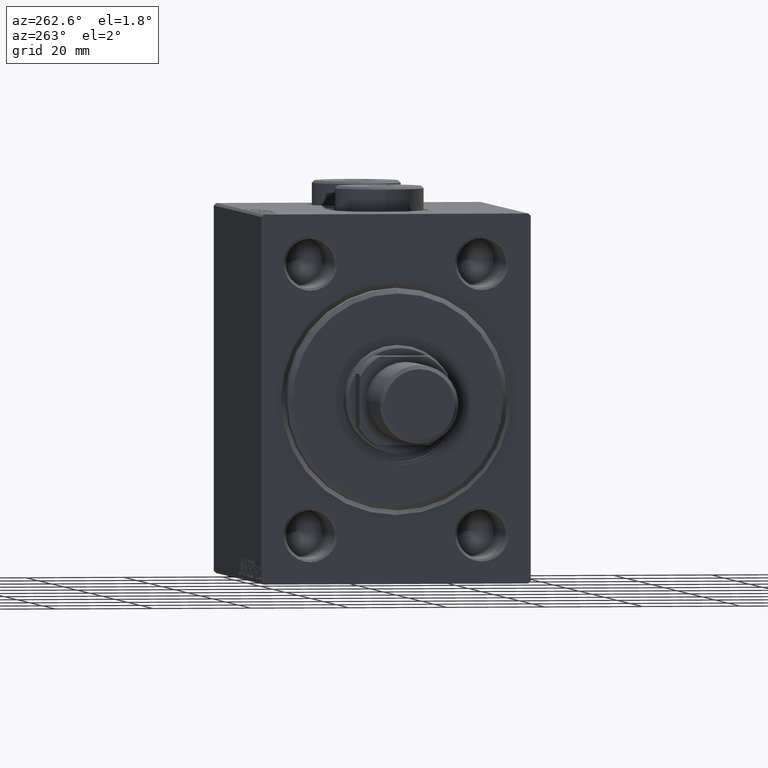
[diagram: clean part render]
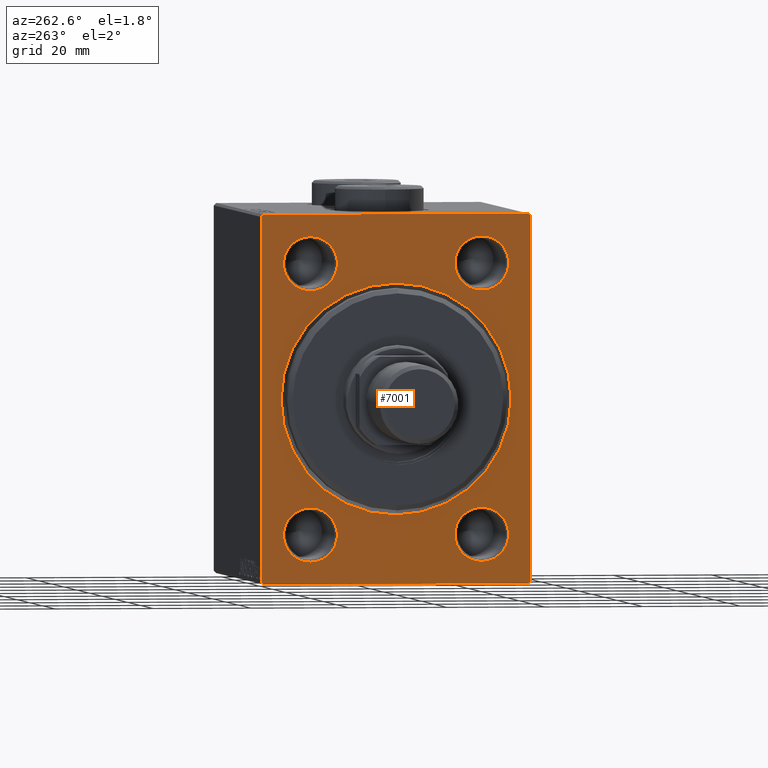
[diagram: same view with one face highlighted and labeled with its STEP entity id]
A machine part, auxiliary view. The second image highlights one B-rep face of the part: STEP entity #7001.
In plain terms, the highlighted planar face has unit normal (1, 0, 0).
Its self-contained STEP definition (entity closure, byte-faithful):
#5 = EDGE_CURVE ( 'NONE', #32208, #4230, #40199, .T. ) ;
#90 = DIRECTION ( 'NONE',  ( 0.000000000000000000, -9.251858538542971581E-17, 1.000000000000000000 ) ) ;
#143 = CARTESIAN_POINT ( 'NONE',  ( 0.000000000000000000, -17.50000000000000000, -27.49999999999999645 ) ) ;
#329 = VECTOR ( 'NONE', #42152, 1000.000000000000000 ) ;
#369 = DIRECTION ( 'NONE',  ( 0.000000000000000000, 0.000000000000000000, -1.000000000000000000 ) ) ;
#450 = CARTESIAN_POINT ( 'NONE',  ( 0.000000000000000000, 27.50000000000000355, -37.00000000000000000 ) ) ;
#473 = EDGE_CURVE ( 'NONE', #22694, #29895, #27891, .T. ) ;
#492 = ORIENTED_EDGE ( 'NONE', *, *, #5, .T. ) ;
#661 = DIRECTION ( 'NONE',  ( 1.000000000000000000, 0.000000000000000000, 0.000000000000000000 ) ) ;
#1321 = DIRECTION ( 'NONE',  ( 0.000000000000000000, 0.000000000000000000, -1.000000000000000000 ) ) ;
#1392 = DIRECTION ( 'NONE',  ( 1.000000000000000000, 0.000000000000000000, 0.000000000000000000 ) ) ;
#1667 = EDGE_CURVE ( 'NONE', #28182, #14094, #38690, .T. ) ;
#1769 = ORIENTED_EDGE ( 'NONE', *, *, #15000, .T. ) ;
#2734 = ORIENTED_EDGE ( 'NONE', *, *, #4884, .T. ) ;
#3314 = ORIENTED_EDGE ( 'NONE', *, *, #39914, .T. ) ;
#3698 = ORIENTED_EDGE ( 'NONE', *, *, #20690, .T. ) ;
#4230 = VERTEX_POINT ( 'NONE', #6906 ) ;
#4460 = VERTEX_POINT ( 'NONE', #32237 ) ;
#4616 = DIRECTION ( 'NONE',  ( 0.000000000000000000, 0.000000000000000000, -1.000000000000000000 ) ) ;
#4751 = CARTESIAN_POINT ( 'NONE',  ( 0.000000000000000000, 0.000000000000000000, 23.50000000000000355 ) ) ;
#4884 = EDGE_CURVE ( 'NONE', #35827, #37418, #34307, .T. ) ;
#5285 = LINE ( 'NONE', #33428, #20755 ) ;
#5304 = DIRECTION ( 'NONE',  ( 0.000000000000000000, 0.000000000000000000, -1.000000000000000000 ) ) ;
#6000 = FACE_BOUND ( 'NONE', #24457, .T. ) ;
#6029 = EDGE_LOOP ( 'NONE', ( #12222, #23725, #23902, #16885, #32453, #10887, #8121, #23984 ) ) ;
#6268 = EDGE_LOOP ( 'NONE', ( #2734, #1769 ) ) ;
#6534 = CARTESIAN_POINT ( 'NONE',  ( 0.000000000000000000, 17.50000000000000000, 33.00000000000000711 ) ) ;
#6830 = DIRECTION ( 'NONE',  ( 0.000000000000000000, 0.000000000000000000, -1.000000000000000000 ) ) ;
#6906 = CARTESIAN_POINT ( 'NONE',  ( 0.000000000000000000, -17.50000000000000000, 33.00000000000002132 ) ) ;
#7001 = ADVANCED_FACE ( 'NONE', ( #27158, #40899, #9478, #6000, #12965, #33443 ), #12493, .F. ) ;
#7231 = VERTEX_POINT ( 'NONE', #35514 ) ;
#8121 = ORIENTED_EDGE ( 'NONE', *, *, #29353, .F. ) ;
#8812 = CARTESIAN_POINT ( 'NONE',  ( 0.000000000000000000, 17.50000000000000000, -33.00000000000001421 ) ) ;
#9201 = CARTESIAN_POINT ( 'NONE',  ( 0.000000000000000000, -27.49999999999999645, 36.99999999999997158 ) ) ;
#9478 = FACE_BOUND ( 'NONE', #15246, .T. ) ;
#10125 = CARTESIAN_POINT ( 'NONE',  ( 0.000000000000000000, -17.50000000000000000, 21.99999999999998224 ) ) ;
#10151 = EDGE_CURVE ( 'NONE', #4460, #23123, #16168, .T. ) ;
#10875 = ORIENTED_EDGE ( 'NONE', *, *, #20712, .T. ) ;
#10887 = ORIENTED_EDGE ( 'NONE', *, *, #473, .T. ) ;
#10906 = VERTEX_POINT ( 'NONE', #6534 ) ;
#11007 = DIRECTION ( 'NONE',  ( 1.000000000000000000, 0.000000000000000000, 0.000000000000000000 ) ) ;
#11213 = CARTESIAN_POINT ( 'NONE',  ( 0.000000000000000000, -17.50000000000000000, -21.99999999999997868 ) ) ;
#11573 = DIRECTION ( 'NONE',  ( 0.000000000000000000, 0.000000000000000000, -1.000000000000000000 ) ) ;
#11663 = VECTOR ( 'NONE', #21366, 1000.000000000000114 ) ;
#12222 = ORIENTED_EDGE ( 'NONE', *, *, #38000, .F. ) ;
#12296 = CIRCLE ( 'NONE', #40543, 5.500000000000018652 ) ;
#12493 = PLANE ( 'NONE',  #41818 ) ;
#12544 = DIRECTION ( 'NONE',  ( 1.000000000000000000, 0.000000000000000000, 0.000000000000000000 ) ) ;
#12965 = FACE_BOUND ( 'NONE', #38172, .T. ) ;
#13513 = EDGE_CURVE ( 'NONE', #17386, #23123, #45407, .T. ) ;
#14033 = CARTESIAN_POINT ( 'NONE',  ( 0.000000000000000000, 27.00000000000000355, -37.50000000000000000 ) ) ;
#14039 = LINE ( 'NONE', #28463, #21661 ) ;
#14094 = VERTEX_POINT ( 'NONE', #11213 ) ;
#14537 = DIRECTION ( 'NONE',  ( 0.000000000000000000, -0.7071067811865474617, -0.7071067811865474617 ) ) ;
#14543 = CARTESIAN_POINT ( 'NONE',  ( 0.000000000000000000, -26.99999999999999645, -37.50000000000000000 ) ) ;
#15000 = EDGE_CURVE ( 'NONE', #37418, #35827, #24892, .T. ) ;
#15246 = EDGE_LOOP ( 'NONE', ( #21827, #492 ) ) ;
#15619 = CARTESIAN_POINT ( 'NONE',  ( 0.000000000000000000, -17.50000000000000000, 27.50000000000000000 ) ) ;
#15640 = VECTOR ( 'NONE', #36069, 1000.000000000000000 ) ;
#15735 = DIRECTION ( 'NONE',  ( 0.000000000000000000, 1.000000000000000000, 0.000000000000000000 ) ) ;
#15801 = CARTESIAN_POINT ( 'NONE',  ( 0.000000000000000000, 0.000000000000000000, 0.000000000000000000 ) ) ;
#16168 = LINE ( 'NONE', #9201, #23409 ) ;
#16885 = ORIENTED_EDGE ( 'NONE', *, *, #24580, .T. ) ;
#16999 = CARTESIAN_POINT ( 'NONE',  ( 0.000000000000000000, 27.00000000000001066, 37.50000000000000000 ) ) ;
#17237 = CIRCLE ( 'NONE', #39497, 5.500000000000018652 ) ;
#17320 = DIRECTION ( 'NONE',  ( 0.000000000000000000, 0.000000000000000000, -1.000000000000000000 ) ) ;
#17386 = VERTEX_POINT ( 'NONE', #16999 ) ;
#17733 = CARTESIAN_POINT ( 'NONE',  ( 0.000000000000000000, 17.50000000000000000, 27.50000000000000000 ) ) ;
#17925 = CARTESIAN_POINT ( 'NONE',  ( 0.000000000000000000, 17.50000000000000000, -21.99999999999997868 ) ) ;
#18330 = CARTESIAN_POINT ( 'NONE',  ( 0.000000000000000000, -17.50000000000000000, -27.49999999999999645 ) ) ;
#18545 = CIRCLE ( 'NONE', #19942, 5.500000000000022204 ) ;
#19075 = CARTESIAN_POINT ( 'NONE',  ( 0.000000000000000000, 0.000000000000000000, 0.000000000000000000 ) ) ;
#19246 = CARTESIAN_POINT ( 'NONE',  ( 0.000000000000000000, 0.000000000000000000, 0.000000000000000000 ) ) ;
#19942 = AXIS2_PLACEMENT_3D ( 'NONE', #42016, #11007, #45728 ) ;
#20308 = VERTEX_POINT ( 'NONE', #17925 ) ;
#20578 = CARTESIAN_POINT ( 'NONE',  ( 0.000000000000000000, 17.50000000000000000, -27.49999999999999645 ) ) ;
#20690 = EDGE_CURVE ( 'NONE', #14094, #28182, #12296, .T. ) ;
#20712 = EDGE_CURVE ( 'NONE', #7231, #10906, #30925, .T. ) ;
#20755 = VECTOR ( 'NONE', #15735, 1000.000000000000000 ) ;
#21309 = DIRECTION ( 'NONE',  ( 1.000000000000000000, 0.000000000000000000, 0.000000000000000000 ) ) ;
#21366 = DIRECTION ( 'NONE',  ( -0.000000000000000000, 0.7071067811865474617, -0.7071067811865474617 ) ) ;
#21627 = AXIS2_PLACEMENT_3D ( 'NONE', #15619, #36814, #43786 ) ;
#21661 = VECTOR ( 'NONE', #90, 1000.000000000000000 ) ;
#21753 = LINE ( 'NONE', #14543, #43056 ) ;
#21827 = ORIENTED_EDGE ( 'NONE', *, *, #32187, .T. ) ;
#22694 = VERTEX_POINT ( 'NONE', #450 ) ;
#23123 = VERTEX_POINT ( 'NONE', #33180 ) ;
#23409 = VECTOR ( 'NONE', #38508, 1000.000000000000114 ) ;
#23725 = ORIENTED_EDGE ( 'NONE', *, *, #10151, .T. ) ;
#23829 = EDGE_CURVE ( 'NONE', #20308, #27194, #25045, .T. ) ;
#23902 = ORIENTED_EDGE ( 'NONE', *, *, #13513, .F. ) ;
#23984 = ORIENTED_EDGE ( 'NONE', *, *, #30336, .T. ) ;
#24217 = ORIENTED_EDGE ( 'NONE', *, *, #23829, .T. ) ;
#24457 = EDGE_LOOP ( 'NONE', ( #31019, #10875 ) ) ;
#24580 = EDGE_CURVE ( 'NONE', #17386, #34434, #39057, .T. ) ;
#24892 = CIRCLE ( 'NONE', #30868, 23.50000000000000355 ) ;
#25008 = DIRECTION ( 'NONE',  ( -0.000000000000000000, -0.7071067811865474617, 0.7071067811865474617 ) ) ;
#25045 = CIRCLE ( 'NONE', #29504, 5.500000000000018652 ) ;
#25109 = CARTESIAN_POINT ( 'NONE',  ( 0.000000000000000000, 27.49999999999999645, 37.50000000000000000 ) ) ;
#25464 = CARTESIAN_POINT ( 'NONE',  ( 0.000000000000000000, 27.50000000000000355, -37.00000000000000000 ) ) ;
#25987 = DIRECTION ( 'NONE',  ( 1.000000000000000000, 0.000000000000000000, 0.000000000000000000 ) ) ;
#26662 = CARTESIAN_POINT ( 'NONE',  ( 0.000000000000000000, -17.50000000000000000, -33.00000000000001421 ) ) ;
#27158 = FACE_BOUND ( 'NONE', #6268, .T. ) ;
#27194 = VERTEX_POINT ( 'NONE', #8812 ) ;
#27891 = LINE ( 'NONE', #25464, #32796 ) ;
#28130 = CARTESIAN_POINT ( 'NONE',  ( 0.000000000000000000, 27.00000000000001066, 37.50000000000000000 ) ) ;
#28182 = VERTEX_POINT ( 'NONE', #26662 ) ;
#28429 = DIRECTION ( 'NONE',  ( 1.000000000000000000, 0.000000000000000000, 0.000000000000000000 ) ) ;
#28463 = CARTESIAN_POINT ( 'NONE',  ( 0.000000000000000000, 27.50000000000000355, -37.50000000000000000 ) ) ;
#29353 = EDGE_CURVE ( 'NONE', #33789, #29895, #5285, .T. ) ;
#29504 = AXIS2_PLACEMENT_3D ( 'NONE', #20578, #31058, #17320 ) ;
#29623 = CIRCLE ( 'NONE', #34107, 5.500000000000001776 ) ;
#29766 = DIRECTION ( 'NONE',  ( 0.000000000000000000, 0.000000000000000000, -1.000000000000000000 ) ) ;
#29819 = AXIS2_PLACEMENT_3D ( 'NONE', #15801, #12544, #41647 ) ;
#29895 = VERTEX_POINT ( 'NONE', #14033 ) ;
#30336 = EDGE_CURVE ( 'NONE', #33789, #35731, #21753, .T. ) ;
#30407 = CARTESIAN_POINT ( 'NONE',  ( 0.000000000000000000, 17.50000000000000000, -27.49999999999999645 ) ) ;
#30498 = EDGE_LOOP ( 'NONE', ( #3698, #32996 ) ) ;
#30868 = AXIS2_PLACEMENT_3D ( 'NONE', #19075, #1392, #29766 ) ;
#30925 = CIRCLE ( 'NONE', #35381, 5.500000000000001776 ) ;
#31019 = ORIENTED_EDGE ( 'NONE', *, *, #32589, .T. ) ;
#31058 = DIRECTION ( 'NONE',  ( 1.000000000000000000, 0.000000000000000000, 0.000000000000000000 ) ) ;
#32187 = EDGE_CURVE ( 'NONE', #4230, #32208, #18545, .T. ) ;
#32208 = VERTEX_POINT ( 'NONE', #10125 ) ;
#32237 = CARTESIAN_POINT ( 'NONE',  ( 0.000000000000000000, -27.49999999999999645, 36.99999999999997158 ) ) ;
#32453 = ORIENTED_EDGE ( 'NONE', *, *, #41041, .F. ) ;
#32589 = EDGE_CURVE ( 'NONE', #10906, #7231, #29623, .T. ) ;
#32796 = VECTOR ( 'NONE', #14537, 1000.000000000000114 ) ;
#32996 = ORIENTED_EDGE ( 'NONE', *, *, #1667, .T. ) ;
#33180 = CARTESIAN_POINT ( 'NONE',  ( 0.000000000000000000, -26.99999999999998224, 37.49999999999998579 ) ) ;
#33198 = DIRECTION ( 'NONE',  ( 1.000000000000000000, 0.000000000000000000, 0.000000000000000000 ) ) ;
#33373 = CARTESIAN_POINT ( 'NONE',  ( 0.000000000000000000, 2.877919977996280715E-15, -23.50000000000000355 ) ) ;
#33428 = CARTESIAN_POINT ( 'NONE',  ( 0.000000000000000000, -27.49999999999999645, -37.50000000000000000 ) ) ;
#33443 = FACE_OUTER_BOUND ( 'NONE', #6029, .T. ) ;
#33789 = VERTEX_POINT ( 'NONE', #37210 ) ;
#34107 = AXIS2_PLACEMENT_3D ( 'NONE', #17733, #28429, #6830 ) ;
#34307 = CIRCLE ( 'NONE', #29819, 23.50000000000000355 ) ;
#34434 = VERTEX_POINT ( 'NONE', #42733 ) ;
#35381 = AXIS2_PLACEMENT_3D ( 'NONE', #42998, #661, #4616 ) ;
#35514 = CARTESIAN_POINT ( 'NONE',  ( 0.000000000000000000, 17.50000000000000000, 21.99999999999999645 ) ) ;
#35718 = AXIS2_PLACEMENT_3D ( 'NONE', #143, #21309, #369 ) ;
#35731 = VERTEX_POINT ( 'NONE', #39417 ) ;
#35827 = VERTEX_POINT ( 'NONE', #4751 ) ;
#35843 = CARTESIAN_POINT ( 'NONE',  ( 0.000000000000000000, -27.49999999999999645, 37.49999999999998579 ) ) ;
#36069 = DIRECTION ( 'NONE',  ( 0.000000000000000000, 0.000000000000000000, -1.000000000000000000 ) ) ;
#36757 = LINE ( 'NONE', #35843, #15640 ) ;
#36814 = DIRECTION ( 'NONE',  ( 1.000000000000000000, 0.000000000000000000, 0.000000000000000000 ) ) ;
#37210 = CARTESIAN_POINT ( 'NONE',  ( 0.000000000000000000, -26.99999999999999645, -37.50000000000000000 ) ) ;
#37418 = VERTEX_POINT ( 'NONE', #33373 ) ;
#38000 = EDGE_CURVE ( 'NONE', #4460, #35731, #36757, .T. ) ;
#38172 = EDGE_LOOP ( 'NONE', ( #24217, #3314 ) ) ;
#38508 = DIRECTION ( 'NONE',  ( -0.000000000000000000, 0.7071067811865474617, 0.7071067811865474617 ) ) ;
#38690 = CIRCLE ( 'NONE', #35718, 5.500000000000018652 ) ;
#39057 = LINE ( 'NONE', #28130, #11663 ) ;
#39417 = CARTESIAN_POINT ( 'NONE',  ( 0.000000000000000000, -27.49999999999999645, -37.00000000000000000 ) ) ;
#39497 = AXIS2_PLACEMENT_3D ( 'NONE', #30407, #33198, #1321 ) ;
#39914 = EDGE_CURVE ( 'NONE', #27194, #20308, #17237, .T. ) ;
#40199 = CIRCLE ( 'NONE', #21627, 5.500000000000022204 ) ;
#40543 = AXIS2_PLACEMENT_3D ( 'NONE', #18330, #25987, #11573 ) ;
#40899 = FACE_BOUND ( 'NONE', #30498, .T. ) ;
#41041 = EDGE_CURVE ( 'NONE', #22694, #34434, #14039, .T. ) ;
#41647 = DIRECTION ( 'NONE',  ( 0.000000000000000000, 0.000000000000000000, -1.000000000000000000 ) ) ;
#41818 = AXIS2_PLACEMENT_3D ( 'NONE', #19246, #44848, #5304 ) ;
#42016 = CARTESIAN_POINT ( 'NONE',  ( 0.000000000000000000, -17.50000000000000000, 27.50000000000000000 ) ) ;
#42152 = DIRECTION ( 'NONE',  ( 0.000000000000000000, -1.000000000000000000, -2.523234146875355998E-16 ) ) ;
#42733 = CARTESIAN_POINT ( 'NONE',  ( 0.000000000000000000, 27.49999999999999645, 37.00000000000001421 ) ) ;
#42998 = CARTESIAN_POINT ( 'NONE',  ( 0.000000000000000000, 17.50000000000000000, 27.50000000000000000 ) ) ;
#43056 = VECTOR ( 'NONE', #25008, 1000.000000000000114 ) ;
#43786 = DIRECTION ( 'NONE',  ( 0.000000000000000000, 0.000000000000000000, -1.000000000000000000 ) ) ;
#44848 = DIRECTION ( 'NONE',  ( 1.000000000000000000, 0.000000000000000000, 0.000000000000000000 ) ) ;
#45407 = LINE ( 'NONE', #25109, #329 ) ;
#45728 = DIRECTION ( 'NONE',  ( 0.000000000000000000, 0.000000000000000000, -1.000000000000000000 ) ) ;